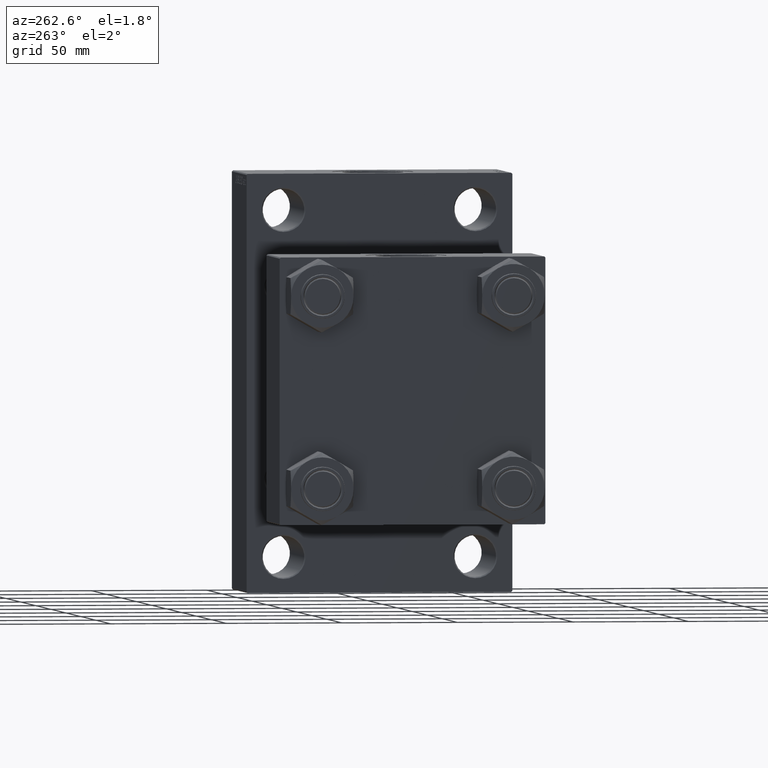
[diagram: clean part render]
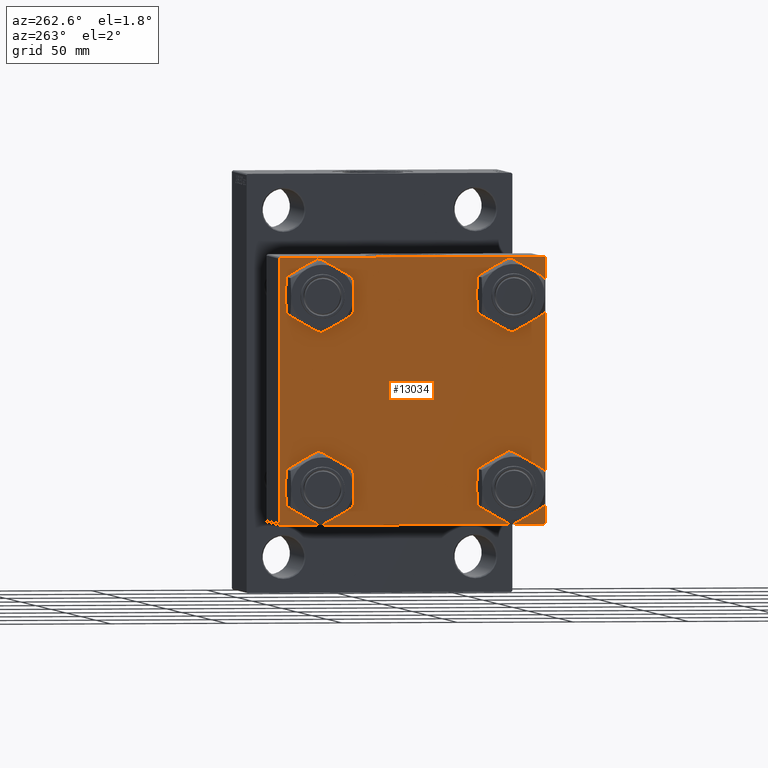
[diagram: same view with one face highlighted and labeled with its STEP entity id]
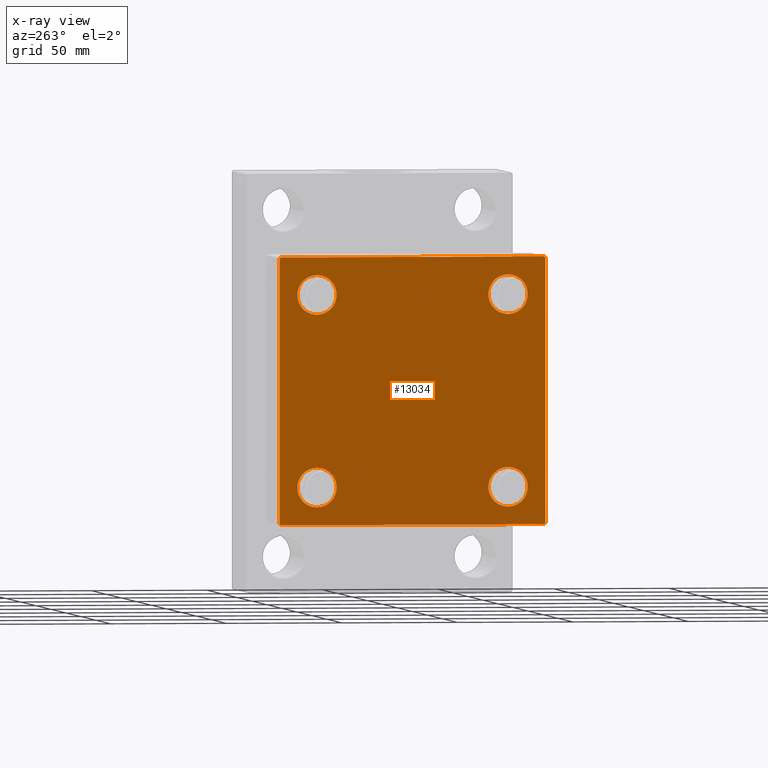
[diagram: x-ray of the same camera — body ghosted, the highlighted face saturated]
A machine part, auxiliary view. The second image highlights one B-rep face of the part: STEP entity #13034.
The next image is the same camera in x-ray: the body ghosted, the highlighted face saturated — about 0% of this face is hidden behind the body in this view.
In plain terms, the highlighted planar face has unit normal (-1, 0, 0).
Its self-contained STEP definition (entity closure, byte-faithful):
#233 = FACE_BOUND ( 'NONE', #40765, .T. ) ;
#239 = CIRCLE ( 'NONE', #12562, 8.499999999999992895 ) ;
#1350 = AXIS2_PLACEMENT_3D ( 'NONE', #30366, #4080, #33751 ) ;
#1425 = CARTESIAN_POINT ( 'NONE',  ( 0.000000000000000000, 57.50000000000000000, 57.00000000000004263 ) ) ;
#1862 = CARTESIAN_POINT ( 'NONE',  ( 0.000000000000000000, 41.34999999999999432, 41.34999999999999432 ) ) ;
#2035 = CARTESIAN_POINT ( 'NONE',  ( 0.000000000000000000, 57.50000000000000000, -57.49999999999999289 ) ) ;
#2198 = EDGE_CURVE ( 'NONE', #37053, #43573, #28078, .T. ) ;
#2640 = CARTESIAN_POINT ( 'NONE',  ( 0.000000000000000000, -57.24999999999962341, -57.25000000000041211 ) ) ;
#3277 = EDGE_CURVE ( 'NONE', #13389, #18027, #11796, .T. ) ;
#3703 = EDGE_CURVE ( 'NONE', #18301, #33429, #46608, .T. ) ;
#4080 = DIRECTION ( 'NONE',  ( -1.000000000000000000, 0.000000000000000000, -0.000000000000000000 ) ) ;
#4110 = CIRCLE ( 'NONE', #22601, 8.499999999999992895 ) ;
#5523 = EDGE_CURVE ( 'NONE', #43573, #37053, #18908, .T. ) ;
#6011 = DIRECTION ( 'NONE',  ( 0.000000000000000000, 0.000000000000000000, 1.000000000000000000 ) ) ;
#6165 = CARTESIAN_POINT ( 'NONE',  ( 0.000000000000000000, 41.34999999999999432, 49.84999999999999432 ) ) ;
#6894 = CARTESIAN_POINT ( 'NONE',  ( 0.000000000000000000, -41.34999999999998721, -32.85000000000000853 ) ) ;
#6936 = ORIENTED_EDGE ( 'NONE', *, *, #2198, .T. ) ;
#7267 = AXIS2_PLACEMENT_3D ( 'NONE', #34913, #45282, #24049 ) ;
#7287 = LINE ( 'NONE', #33090, #16362 ) ;
#7833 = DIRECTION ( 'NONE',  ( 0.000000000000000000, 6.033820786006285224E-17, -1.000000000000000000 ) ) ;
#8048 = ORIENTED_EDGE ( 'NONE', *, *, #30843, .T. ) ;
#8077 = EDGE_CURVE ( 'NONE', #34708, #13389, #9872, .T. ) ;
#8093 = EDGE_CURVE ( 'NONE', #14198, #21393, #35926, .T. ) ;
#8789 = VERTEX_POINT ( 'NONE', #46996 ) ;
#8817 = ORIENTED_EDGE ( 'NONE', *, *, #3703, .T. ) ;
#9097 = DIRECTION ( 'NONE',  ( 0.000000000000000000, 0.000000000000000000, 1.000000000000000000 ) ) ;
#9300 = DIRECTION ( 'NONE',  ( 1.000000000000000000, -0.000000000000000000, 0.000000000000000000 ) ) ;
#9542 = CARTESIAN_POINT ( 'NONE',  ( 0.000000000000000000, -41.34999999999998721, 49.85000000000000142 ) ) ;
#9872 = LINE ( 'NONE', #39296, #36741 ) ;
#10269 = CARTESIAN_POINT ( 'NONE',  ( 0.000000000000000000, 57.00000000000002842, -57.49999999999999289 ) ) ;
#11235 = DIRECTION ( 'NONE',  ( 0.000000000000000000, 0.000000000000000000, 1.000000000000000000 ) ) ;
#11796 = LINE ( 'NONE', #23128, #20398 ) ;
#11956 = ORIENTED_EDGE ( 'NONE', *, *, #16318, .T. ) ;
#12562 = AXIS2_PLACEMENT_3D ( 'NONE', #42139, #30806, #9097 ) ;
#13034 = ADVANCED_FACE ( 'NONE', ( #233, #17815, #32554, #35936, #21229 ), #13969, .T. ) ;
#13349 = CARTESIAN_POINT ( 'NONE',  ( 0.000000000000000000, -57.50000000000000000, 56.99999999999997868 ) ) ;
#13389 = VERTEX_POINT ( 'NONE', #1425 ) ;
#13525 = EDGE_LOOP ( 'NONE', ( #26423, #11956 ) ) ;
#13969 = PLANE ( 'NONE',  #1350 ) ;
#14198 = VERTEX_POINT ( 'NONE', #34950 ) ;
#14712 = CARTESIAN_POINT ( 'NONE',  ( 0.000000000000000000, 57.25000000000119371, -57.24999999999880629 ) ) ;
#14960 = DIRECTION ( 'NONE',  ( 0.000000000000000000, 0.000000000000000000, 1.000000000000000000 ) ) ;
#15088 = DIRECTION ( 'NONE',  ( 1.000000000000000000, -0.000000000000000000, 0.000000000000000000 ) ) ;
#15526 = VERTEX_POINT ( 'NONE', #23264 ) ;
#15648 = EDGE_CURVE ( 'NONE', #41279, #14198, #28081, .T. ) ;
#16078 = DIRECTION ( 'NONE',  ( 1.000000000000000000, -0.000000000000000000, 0.000000000000000000 ) ) ;
#16318 = EDGE_CURVE ( 'NONE', #8789, #45811, #18487, .T. ) ;
#16362 = VECTOR ( 'NONE', #44411, 999.9999999999998863 ) ;
#16539 = DIRECTION ( 'NONE',  ( 0.000000000000000000, 0.000000000000000000, 1.000000000000000000 ) ) ;
#16939 = AXIS2_PLACEMENT_3D ( 'NONE', #33673, #15088, #11235 ) ;
#17112 = EDGE_CURVE ( 'NONE', #34708, #15526, #28450, .T. ) ;
#17157 = ORIENTED_EDGE ( 'NONE', *, *, #3277, .T. ) ;
#17479 = VECTOR ( 'NONE', #32302, 1000.000000000000000 ) ;
#17815 = FACE_BOUND ( 'NONE', #13525, .T. ) ;
#18027 = VERTEX_POINT ( 'NONE', #29657 ) ;
#18183 = CARTESIAN_POINT ( 'NONE',  ( 0.000000000000000000, -57.49999999999999289, -57.00000000000003553 ) ) ;
#18301 = VERTEX_POINT ( 'NONE', #35174 ) ;
#18487 = CIRCLE ( 'NONE', #16939, 8.499999999999992895 ) ;
#18824 = CARTESIAN_POINT ( 'NONE',  ( 0.000000000000000000, 41.34999999999999432, 41.34999999999999432 ) ) ;
#18908 = CIRCLE ( 'NONE', #45865, 8.499999999999992895 ) ;
#20398 = VECTOR ( 'NONE', #37612, 1000.000000000000000 ) ;
#20742 = ORIENTED_EDGE ( 'NONE', *, *, #17112, .F. ) ;
#21229 = FACE_OUTER_BOUND ( 'NONE', #43052, .T. ) ;
#21393 = VERTEX_POINT ( 'NONE', #18183 ) ;
#21442 = CARTESIAN_POINT ( 'NONE',  ( 0.000000000000000000, 41.34999999999999432, -49.84999999999999432 ) ) ;
#21905 = ORIENTED_EDGE ( 'NONE', *, *, #28224, .T. ) ;
#22601 = AXIS2_PLACEMENT_3D ( 'NONE', #18824, #40767, #14960 ) ;
#23128 = CARTESIAN_POINT ( 'NONE',  ( 0.000000000000000000, 57.50000000000000000, 57.50000000000001421 ) ) ;
#23264 = CARTESIAN_POINT ( 'NONE',  ( 0.000000000000000000, -56.99999999999997158, 57.49999999999999289 ) ) ;
#23548 = CARTESIAN_POINT ( 'NONE',  ( 0.000000000000000000, -41.34999999999998721, 41.35000000000000142 ) ) ;
#24049 = DIRECTION ( 'NONE',  ( 0.000000000000000000, 0.000000000000000000, 1.000000000000000000 ) ) ;
#24068 = CARTESIAN_POINT ( 'NONE',  ( 0.000000000000000000, -41.34999999999998721, -41.35000000000000142 ) ) ;
#24282 = AXIS2_PLACEMENT_3D ( 'NONE', #24068, #42637, #38791 ) ;
#25047 = CIRCLE ( 'NONE', #24282, 8.499999999999992895 ) ;
#25822 = AXIS2_PLACEMENT_3D ( 'NONE', #23548, #9300, #16539 ) ;
#26163 = LINE ( 'NONE', #32939, #43350 ) ;
#26247 = VERTEX_POINT ( 'NONE', #13349 ) ;
#26423 = ORIENTED_EDGE ( 'NONE', *, *, #47278, .T. ) ;
#26545 = EDGE_LOOP ( 'NONE', ( #45225, #21905 ) ) ;
#27188 = AXIS2_PLACEMENT_3D ( 'NONE', #1862, #16078, #31293 ) ;
#28018 = CARTESIAN_POINT ( 'NONE',  ( 0.000000000000000000, 57.00000000000001421, 57.50000000000001421 ) ) ;
#28078 = CIRCLE ( 'NONE', #7267, 8.499999999999992895 ) ;
#28081 = LINE ( 'NONE', #2035, #33784 ) ;
#28103 = ORIENTED_EDGE ( 'NONE', *, *, #8077, .T. ) ;
#28190 = EDGE_CURVE ( 'NONE', #33429, #18301, #239, .T. ) ;
#28224 = EDGE_CURVE ( 'NONE', #28728, #38390, #29492, .T. ) ;
#28450 = LINE ( 'NONE', #43391, #30062 ) ;
#28728 = VERTEX_POINT ( 'NONE', #30462 ) ;
#29047 = ORIENTED_EDGE ( 'NONE', *, *, #41795, .F. ) ;
#29492 = CIRCLE ( 'NONE', #27188, 8.499999999999992895 ) ;
#29657 = CARTESIAN_POINT ( 'NONE',  ( 0.000000000000000000, 57.50000000000000000, -56.99999999999997158 ) ) ;
#30062 = VECTOR ( 'NONE', #39783, 1000.000000000000000 ) ;
#30366 = CARTESIAN_POINT ( 'NONE',  ( 0.000000000000000000, 0.000000000000000000, 0.000000000000000000 ) ) ;
#30462 = CARTESIAN_POINT ( 'NONE',  ( 0.000000000000000000, 41.34999999999999432, 32.85000000000000142 ) ) ;
#30806 = DIRECTION ( 'NONE',  ( 1.000000000000000000, -0.000000000000000000, 0.000000000000000000 ) ) ;
#30843 = EDGE_CURVE ( 'NONE', #26247, #15526, #7287, .T. ) ;
#31201 = EDGE_LOOP ( 'NONE', ( #6936, #45942 ) ) ;
#31293 = DIRECTION ( 'NONE',  ( 0.000000000000000000, 0.000000000000000000, 1.000000000000000000 ) ) ;
#31686 = DIRECTION ( 'NONE',  ( 0.000000000000000000, -1.000000000000000000, -1.206764157201257291E-16 ) ) ;
#32302 = DIRECTION ( 'NONE',  ( 0.000000000000000000, -0.7071067811865524577, 0.7071067811865426878 ) ) ;
#32554 = FACE_BOUND ( 'NONE', #31201, .T. ) ;
#32589 = LINE ( 'NONE', #14712, #43384 ) ;
#32939 = CARTESIAN_POINT ( 'NONE',  ( 0.000000000000000000, -57.50000000000000000, 57.49999999999999289 ) ) ;
#33090 = CARTESIAN_POINT ( 'NONE',  ( -0.000000000000000000, -57.24999999999918998, 57.25000000000078160 ) ) ;
#33429 = VERTEX_POINT ( 'NONE', #9542 ) ;
#33673 = CARTESIAN_POINT ( 'NONE',  ( 0.000000000000000000, -41.34999999999998721, -41.35000000000000142 ) ) ;
#33751 = DIRECTION ( 'NONE',  ( -0.000000000000000000, 0.000000000000000000, 1.000000000000000000 ) ) ;
#33784 = VECTOR ( 'NONE', #31686, 1000.000000000000000 ) ;
#34660 = ORIENTED_EDGE ( 'NONE', *, *, #8093, .T. ) ;
#34708 = VERTEX_POINT ( 'NONE', #28018 ) ;
#34913 = CARTESIAN_POINT ( 'NONE',  ( 0.000000000000000000, 41.34999999999999432, -41.34999999999999432 ) ) ;
#34950 = CARTESIAN_POINT ( 'NONE',  ( 0.000000000000000000, -57.00000000000001421, -57.50000000000000711 ) ) ;
#35174 = CARTESIAN_POINT ( 'NONE',  ( 0.000000000000000000, -41.34999999999998721, 32.85000000000000853 ) ) ;
#35926 = LINE ( 'NONE', #2640, #17479 ) ;
#35936 = FACE_BOUND ( 'NONE', #26545, .T. ) ;
#36198 = DIRECTION ( 'NONE',  ( -0.000000000000000000, -0.7071067811865328068, -0.7071067811865622277 ) ) ;
#36741 = VECTOR ( 'NONE', #43143, 1000.000000000000114 ) ;
#37053 = VERTEX_POINT ( 'NONE', #42409 ) ;
#37612 = DIRECTION ( 'NONE',  ( 0.000000000000000000, 0.000000000000000000, -1.000000000000000000 ) ) ;
#38390 = VERTEX_POINT ( 'NONE', #6165 ) ;
#38791 = DIRECTION ( 'NONE',  ( 0.000000000000000000, 0.000000000000000000, 1.000000000000000000 ) ) ;
#38829 = DIRECTION ( 'NONE',  ( 1.000000000000000000, -0.000000000000000000, 0.000000000000000000 ) ) ;
#39296 = CARTESIAN_POINT ( 'NONE',  ( 0.000000000000000000, 57.24999999999922551, 57.25000000000081712 ) ) ;
#39783 = DIRECTION ( 'NONE',  ( 0.000000000000000000, -1.000000000000000000, -1.810146235801885567E-16 ) ) ;
#40625 = ORIENTED_EDGE ( 'NONE', *, *, #15648, .T. ) ;
#40765 = EDGE_LOOP ( 'NONE', ( #42339, #8817 ) ) ;
#40767 = DIRECTION ( 'NONE',  ( 1.000000000000000000, -0.000000000000000000, 0.000000000000000000 ) ) ;
#41279 = VERTEX_POINT ( 'NONE', #10269 ) ;
#41795 = EDGE_CURVE ( 'NONE', #26247, #21393, #26163, .T. ) ;
#42139 = CARTESIAN_POINT ( 'NONE',  ( 0.000000000000000000, -41.34999999999998721, 41.35000000000000142 ) ) ;
#42339 = ORIENTED_EDGE ( 'NONE', *, *, #28190, .T. ) ;
#42409 = CARTESIAN_POINT ( 'NONE',  ( 0.000000000000000000, 41.34999999999999432, -32.85000000000000142 ) ) ;
#42637 = DIRECTION ( 'NONE',  ( 1.000000000000000000, -0.000000000000000000, 0.000000000000000000 ) ) ;
#43052 = EDGE_LOOP ( 'NONE', ( #17157, #46235, #40625, #34660, #29047, #8048, #20742, #28103 ) ) ;
#43094 = EDGE_CURVE ( 'NONE', #38390, #28728, #4110, .T. ) ;
#43143 = DIRECTION ( 'NONE',  ( 0.000000000000000000, 0.7071067811865573427, -0.7071067811865376918 ) ) ;
#43175 = EDGE_CURVE ( 'NONE', #18027, #41279, #32589, .T. ) ;
#43350 = VECTOR ( 'NONE', #7833, 1000.000000000000000 ) ;
#43384 = VECTOR ( 'NONE', #36198, 1000.000000000000000 ) ;
#43391 = CARTESIAN_POINT ( 'NONE',  ( 0.000000000000000000, 57.50000000000000000, 57.50000000000001421 ) ) ;
#43573 = VERTEX_POINT ( 'NONE', #21442 ) ;
#44411 = DIRECTION ( 'NONE',  ( -0.000000000000000000, 0.7071067811865574537, 0.7071067811865376918 ) ) ;
#45225 = ORIENTED_EDGE ( 'NONE', *, *, #43094, .T. ) ;
#45282 = DIRECTION ( 'NONE',  ( 1.000000000000000000, -0.000000000000000000, 0.000000000000000000 ) ) ;
#45811 = VERTEX_POINT ( 'NONE', #6894 ) ;
#45865 = AXIS2_PLACEMENT_3D ( 'NONE', #46521, #38829, #6011 ) ;
#45942 = ORIENTED_EDGE ( 'NONE', *, *, #5523, .T. ) ;
#46235 = ORIENTED_EDGE ( 'NONE', *, *, #43175, .T. ) ;
#46521 = CARTESIAN_POINT ( 'NONE',  ( 0.000000000000000000, 41.34999999999999432, -41.34999999999999432 ) ) ;
#46608 = CIRCLE ( 'NONE', #25822, 8.499999999999992895 ) ;
#46996 = CARTESIAN_POINT ( 'NONE',  ( 0.000000000000000000, -41.34999999999998721, -49.85000000000000142 ) ) ;
#47278 = EDGE_CURVE ( 'NONE', #45811, #8789, #25047, .T. ) ;